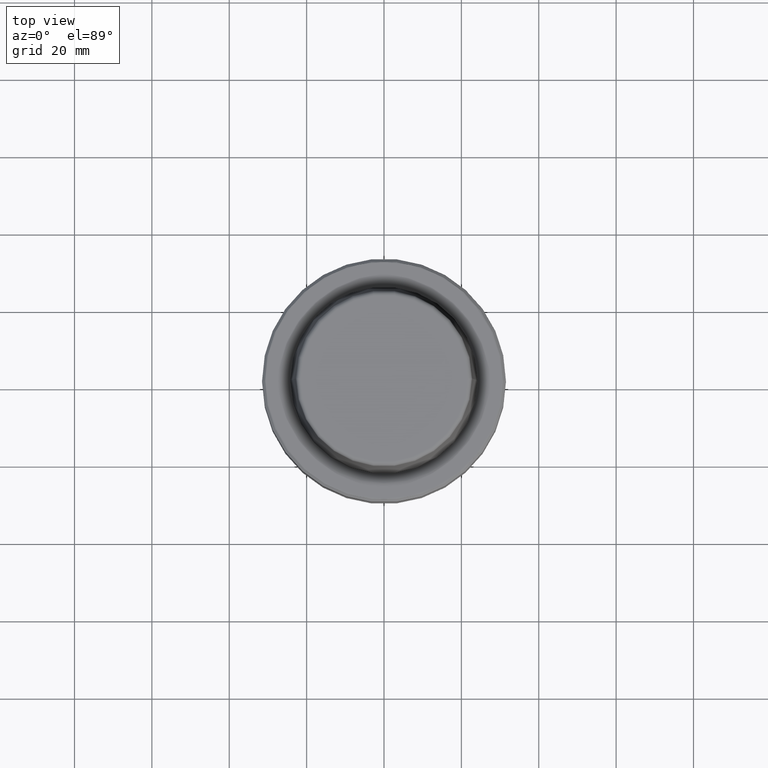
[diagram: clean part render]
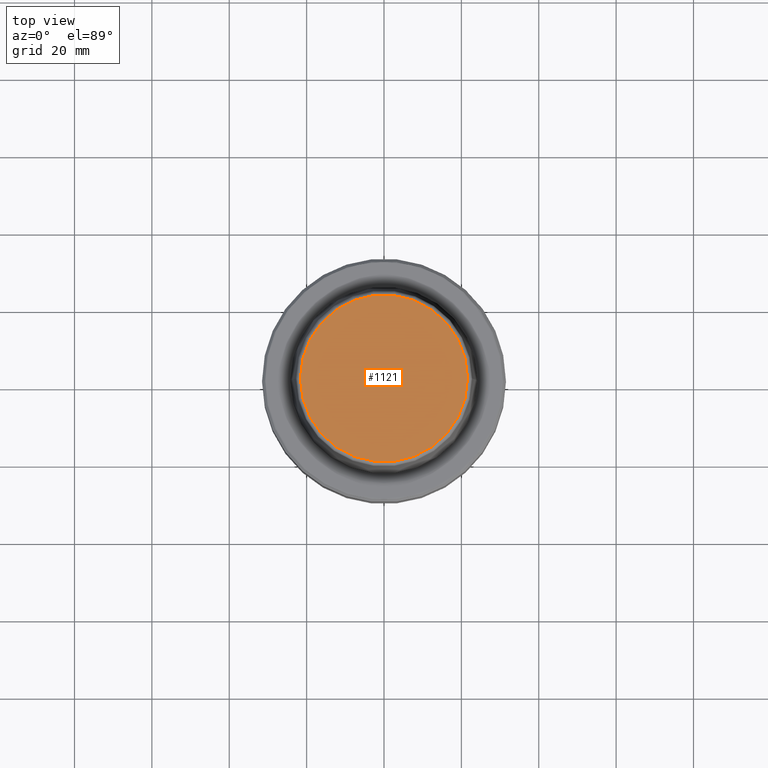
[diagram: same view with one face highlighted and labeled with its STEP entity id]
A machine part, top view. The second image highlights one B-rep face of the part: STEP entity #1121.
In plain terms, the highlighted planar face has unit normal (0, 0, -1).
Its self-contained STEP definition (entity closure, byte-faithful):
#62 = ORIENTED_EDGE ( 'NONE', *, *, #692, .T. ) ;
#116 = DIRECTION ( 'NONE',  ( 0.0000000000000000000, 0.0000000000000000000, -1.000000000000000000 ) ) ;
#125 = CARTESIAN_POINT ( 'NONE',  ( 21.58108272732117100, 0.0000000000000000000, 31.89999999999999900 ) ) ;
#180 = PLANE ( 'NONE',  #651 ) ;
#316 = AXIS2_PLACEMENT_3D ( 'NONE', #1180, #423, #637 ) ;
#389 = DIRECTION ( 'NONE',  ( 1.000000000000000000, 0.0000000000000000000, 0.0000000000000000000 ) ) ;
#402 = DIRECTION ( 'NONE',  ( -0.0000000000000000000, -0.0000000000000000000, 1.000000000000000000 ) ) ;
#423 = DIRECTION ( 'NONE',  ( -0.0000000000000000000, -0.0000000000000000000, 1.000000000000000000 ) ) ;
#571 = CARTESIAN_POINT ( 'NONE',  ( -21.58108272732117100, 2.716307157494421400E-015, 31.89999999999999900 ) ) ;
#637 = DIRECTION ( 'NONE',  ( 1.000000000000000000, 0.0000000000000000000, 0.0000000000000000000 ) ) ;
#639 = CARTESIAN_POINT ( 'NONE',  ( 0.0000000000000000000, 0.0000000000000000000, 31.89999999999999900 ) ) ;
#647 = EDGE_LOOP ( 'NONE', ( #62, #989 ) ) ;
#651 = AXIS2_PLACEMENT_3D ( 'NONE', #905, #116, #913 ) ;
#660 = FACE_OUTER_BOUND ( 'NONE', #647, .T. ) ;
#692 = EDGE_CURVE ( 'NONE', #981, #1171, #822, .T. ) ;
#822 = CIRCLE ( 'NONE', #948, 21.58108272732117100 ) ;
#905 = CARTESIAN_POINT ( 'NONE',  ( 0.0000000000000000000, 0.0000000000000000000, 31.89999999999999900 ) ) ;
#913 = DIRECTION ( 'NONE',  ( -1.000000000000000000, 0.0000000000000000000, -0.0000000000000000000 ) ) ;
#948 = AXIS2_PLACEMENT_3D ( 'NONE', #639, #402, #389 ) ;
#981 = VERTEX_POINT ( 'NONE', #125 ) ;
#987 = EDGE_CURVE ( 'NONE', #1171, #981, #1202, .T. ) ;
#989 = ORIENTED_EDGE ( 'NONE', *, *, #987, .T. ) ;
#1121 = ADVANCED_FACE ( 'NONE', ( #660 ), #180, .F. ) ;
#1171 = VERTEX_POINT ( 'NONE', #571 ) ;
#1180 = CARTESIAN_POINT ( 'NONE',  ( 0.0000000000000000000, 0.0000000000000000000, 31.89999999999999900 ) ) ;
#1202 = CIRCLE ( 'NONE', #316, 21.58108272732117100 ) ;